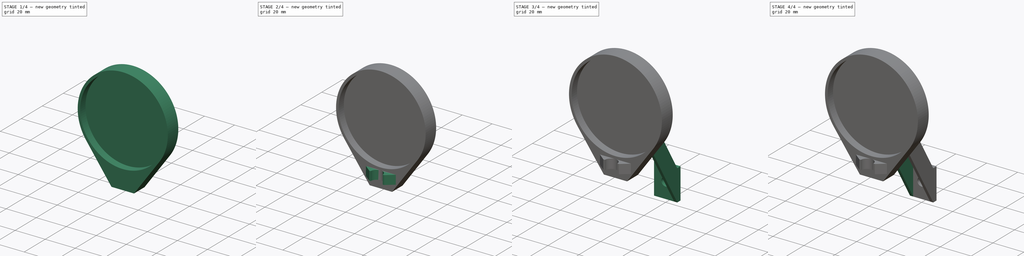
[diagram: build sequence overview — one tinted view per stage of 4, left to right]
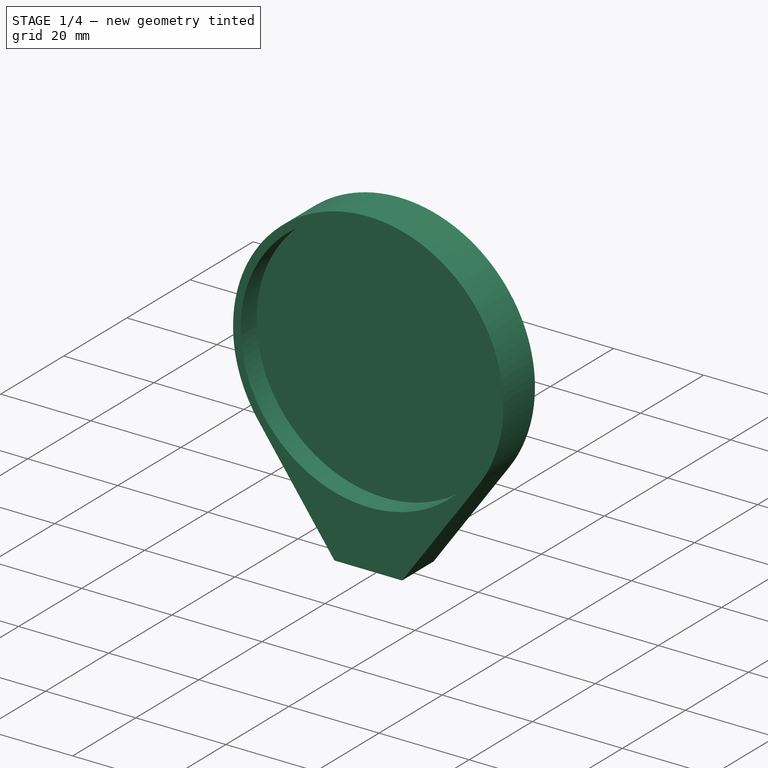
[diagram: stage 1 of 4 — iso view after this stage's code; geometry added in this stage tinted green]
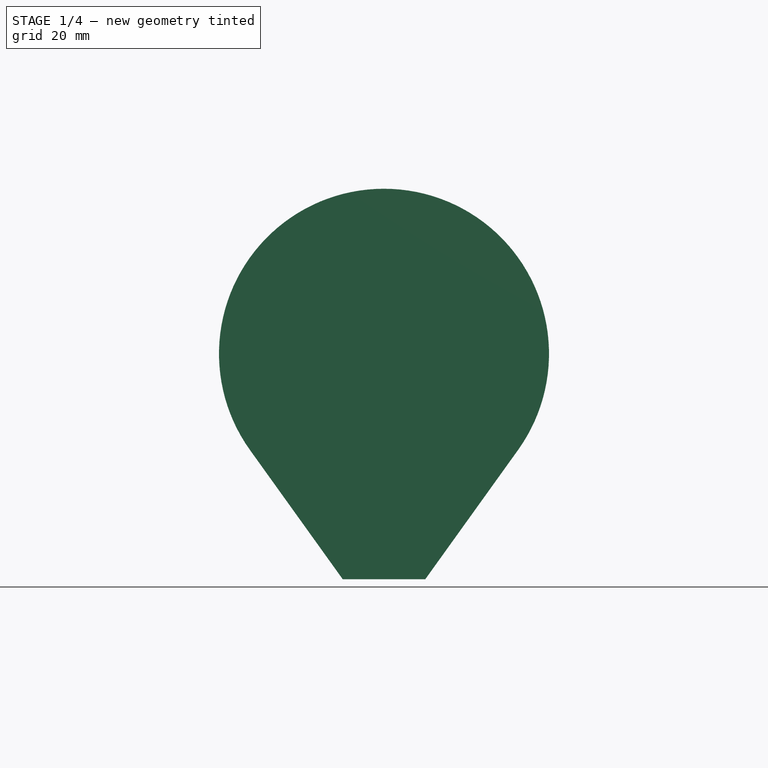
[diagram: stage 1 of 4 — front view after this stage's code; geometry added in this stage tinted green]
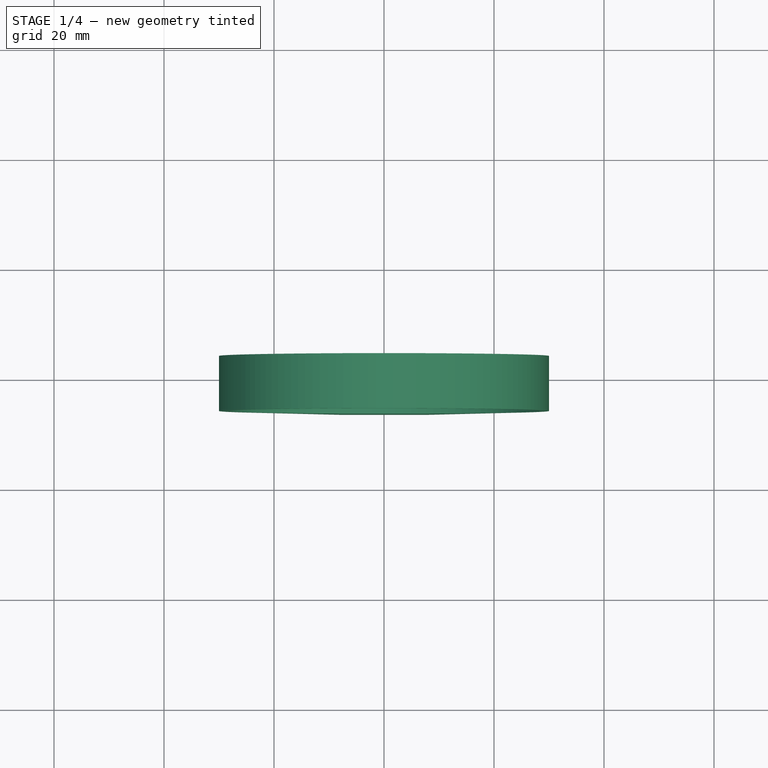
[diagram: stage 1 of 4 — top view after this stage's code; geometry added in this stage tinted green]
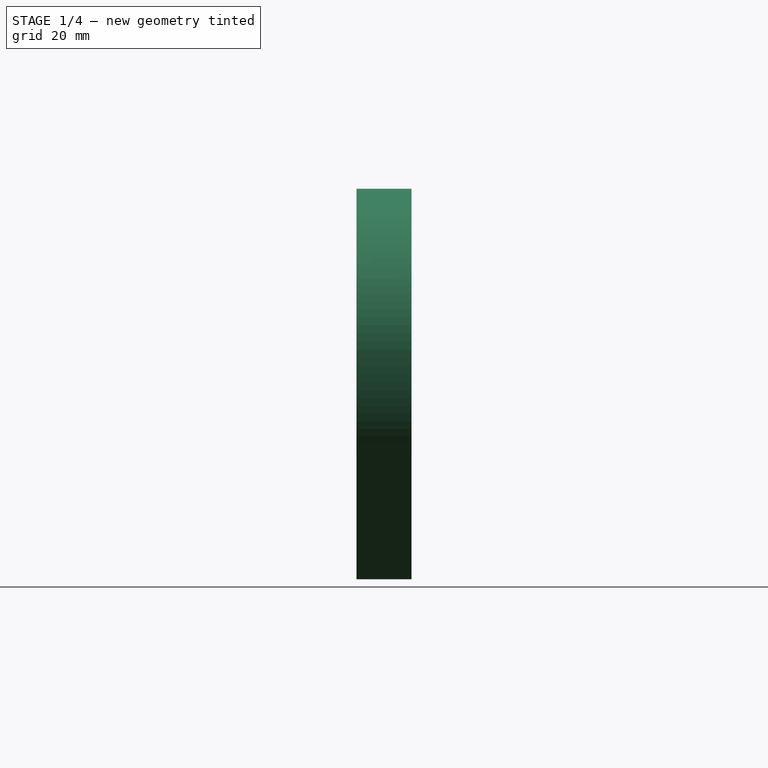
[diagram: stage 1 of 4 — right view after this stage's code; geometry added in this stage tinted green]
FCSTD DOCUMENT  (FreeCAD 0.21R33668 +26 (Git))
Label: digital_indicator_holder_sides
License: All rights reserved
LicenseURL: https://en.wikipedia.org/wiki/All_rights_reserved
objects: Sketcher::SketchObject×8, PartDesign::Pad×6, PartDesign::Plane×4, PartDesign::Mirrored×2, PartDesign::Pocket×2, PartDesign::Body×2
note: 32 computed .brp shape members not serialized (recipe doc carries the construction recipe); baked Part::Feature solids carry a one-line shape summary decoded from their .brp

FEATURE [PartDesign::Pad] Pad007
  Direction = (0,-1,-2e-16)
  Length = 10
  Length2 = 10
  Midplane = true
  Placement = pos=(0,-41.3,-9.2e-15) rot=(1,0,0;1.5708rad)
  Profile = -> Sketch003
  ReferenceAxis = -> Sketch003 [N_Axis]
  Type = 0
FEATURE [PartDesign::Pocket] Pocket
  BaseFeature = -> Pad007
  Direction = (0,1,2e-16)
  Length = 5
  Length2 = 5
  Placement = pos=(0,-41.3,-9.2e-15) rot=(1,0,0;1.5708rad)
  Profile = -> Sketch004
  ReferenceAxis = -> Sketch004 [N_Axis]
  Reversed = true
  Type = 0
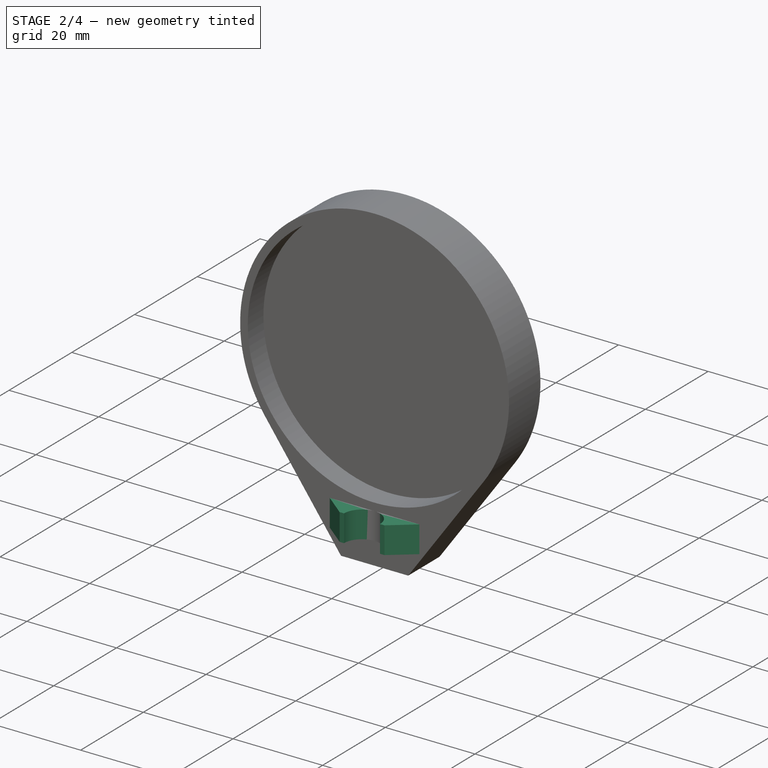
[diagram: stage 2 of 4 — iso view after this stage's code; geometry added in this stage tinted green]
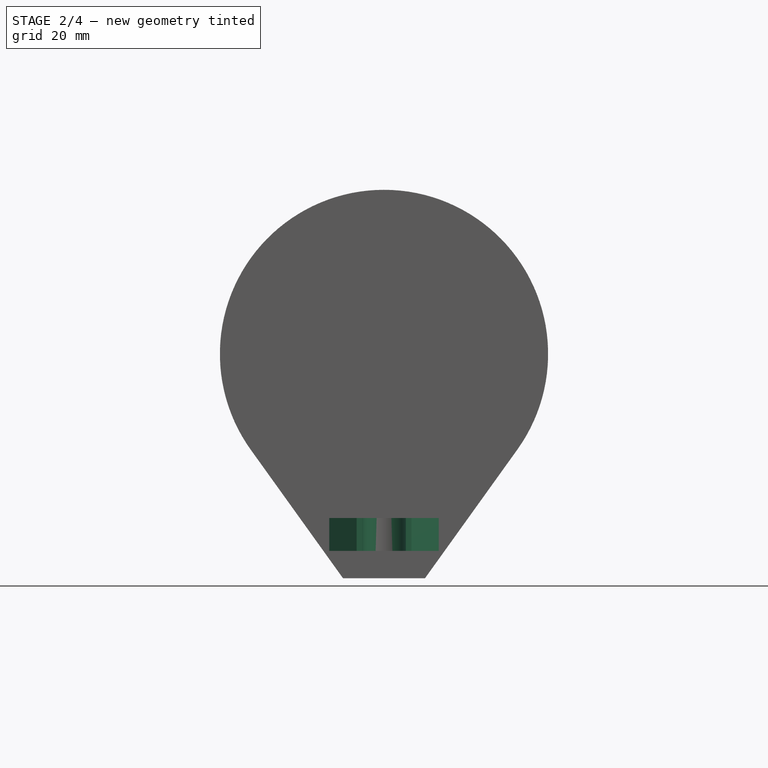
[diagram: stage 2 of 4 — front view after this stage's code; geometry added in this stage tinted green]
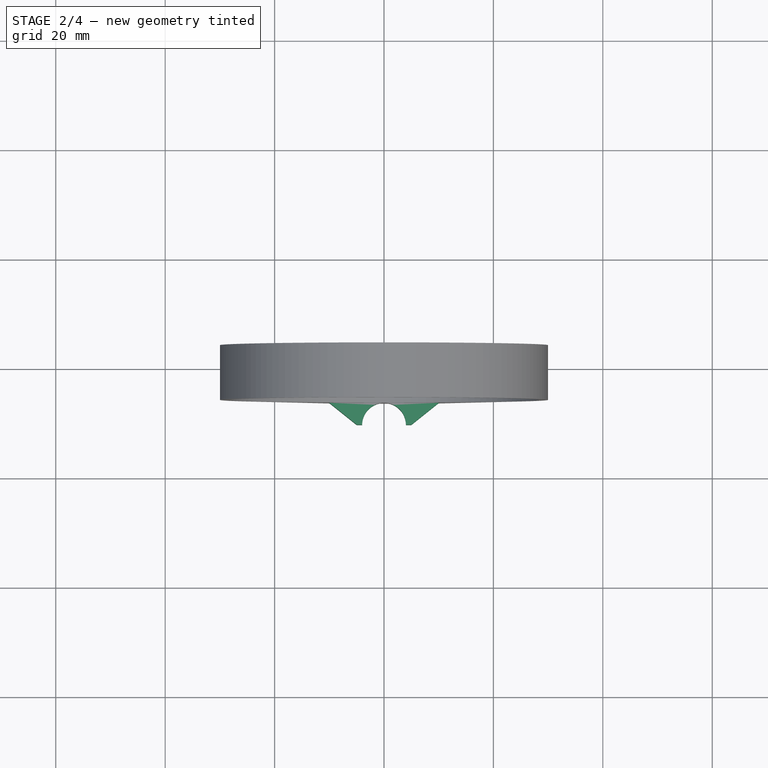
[diagram: stage 2 of 4 — top view after this stage's code; geometry added in this stage tinted green]
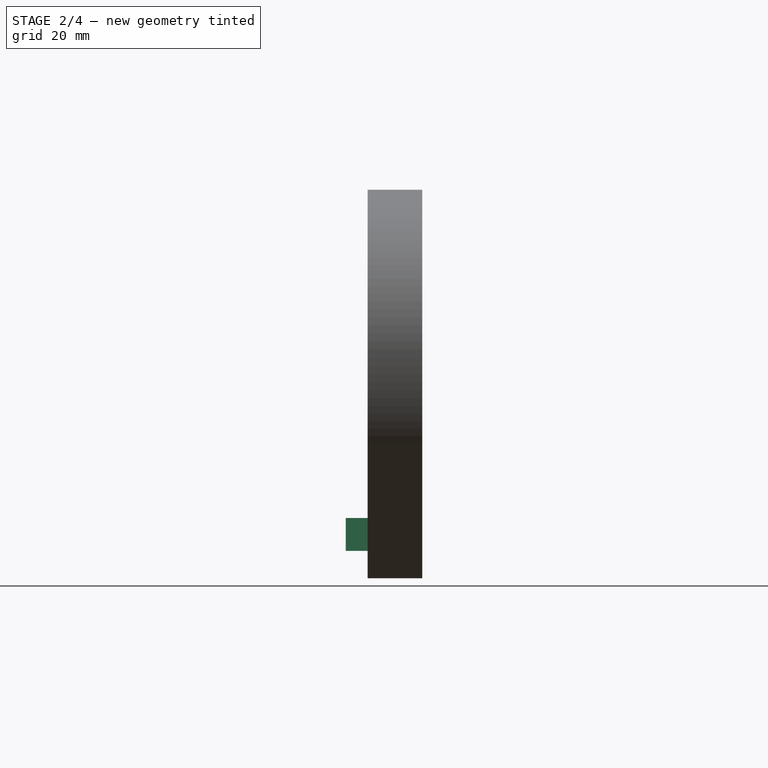
[diagram: stage 2 of 4 — right view after this stage's code; geometry added in this stage tinted green]
FEATURE [PartDesign::Pad] Pad008
  BaseFeature = -> Pocket
  Direction = (0,0,1)
  Length = 6
  Length2 = 10
  Midplane = true
  Placement = pos=(0,-41.3,-9.2e-15) rot=(1,0,0;1.5708rad)
  Profile = -> Sketch005
  ReferenceAxis = -> Sketch005 [N_Axis]
  Type = 0
FEATURE [PartDesign::Mirrored] Mirrored001
  BaseFeature = -> Pad008
  MirrorPlane = -> Sketch005 [V_Axis]
  Originals = -> [Pad008]
  Placement = pos=(0,-41.3,-9.2e-15) rot=(1,0,0;1.5708rad)
FEATURE [PartDesign::Body] Body001
  Group = -> [Sketch,Pad,DatumPlane,Sketch001,Pad005,Sketch002,Pad006,DatumPlane003,Mirrored,Pad009,Sketch006]
  Origin = -> Origin001
  Tip = -> Pad006
FEATURE [Sketcher::SketchObject] Sketch007
  FullyConstrained = true
  MapMode = 5
  Placement = pos=(0,-36.3,8.1e-15) rot=(1,0,0;1.5708rad)
  Support = -> [DatumPlane003]
  sketch-geometry (8):
    g0: LineSegment StartX=-7.5 StartY=70 StartZ=0 EndX=-7.5 EndY=50 EndZ=0
    g1: LineSegment StartX=-7.5 StartY=50 StartZ=0 EndX=-5.5 EndY=50 EndZ=0
    g2: LineSegment StartX=-5.5 StartY=50 StartZ=0 EndX=-5.5 EndY=68 EndZ=0
    g3: LineSegment StartX=-5.5 StartY=68 StartZ=0 EndX=5.5 EndY=68 EndZ=0
    g4: LineSegment StartX=5.5 StartY=68 StartZ=0 EndX=5.5 EndY=50 EndZ=0
    g5: LineSegment StartX=5.5 StartY=50 StartZ=0 EndX=7.5 EndY=50 EndZ=0
    g6: LineSegment StartX=7.5 StartY=50 StartZ=0 EndX=7.5 EndY=70 EndZ=0
    g7: LineSegment StartX=7.5 StartY=70 StartZ=0 EndX=-7.5 EndY=70 EndZ=0
  constraints (22):
    c: Vertical(g0)
    c: Coincident(g1,g0)
    c: Coincident(g2,g1)
    c: Vertical(g2)
    c: Coincident(g3,g2)
    c: Coincident(g4,g3)
    c: Vertical(g4)
    c: Coincident(g5,g4)
    c: Coincident(g6,g5)
    c: Vertical(g6)
    c: Coincident(g7,g6)
    c: Coincident(g7,g0)
    c: Horizontal(g5)
    c: Horizontal(g1)
    c: Horizontal(g4,g1)
    c: Symmetric(g3,g2,g-2)
    c: Symmetric(g6,g0,g-2)
    c: DistanceX(g7,g7) = 15
    c: DistanceX(g3,g3) = 11
    c: DistanceY(g6,g6) = 20
    c: DistanceY(g4,g4) = 18
    c: DistanceY(g-1,g3) = 68
FEATURE [PartDesign::Pocket] Pocket001
  BaseFeature = -> Mirrored001
  Direction = (0,1,-2e-16)
  Length = 1
  Length2 = 5
  Placement = pos=(0,-41.3,-9.2e-15) rot=(1,0,0;1.5708rad)
  Profile = -> Sketch007
  ReferenceAxis = -> Sketch007 [N_Axis]
  Reversed = true
  Type = 0
FEATURE [PartDesign::Body] Body
  Group = -> [DatumPlane001,Sketch003,Pad007,Sketch004,Pocket,DatumPlane002,Sketch005,Pad008,Mirrored001,Pocket001,Sketch007]
  Origin = -> Origin
  Tip = -> Pad008
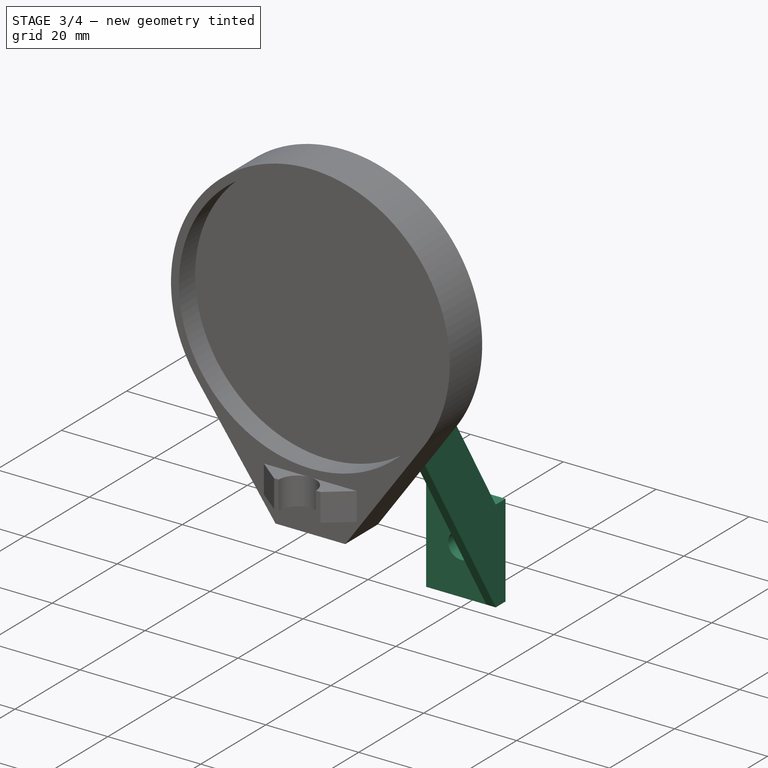
[diagram: stage 3 of 4 — iso view after this stage's code; geometry added in this stage tinted green]
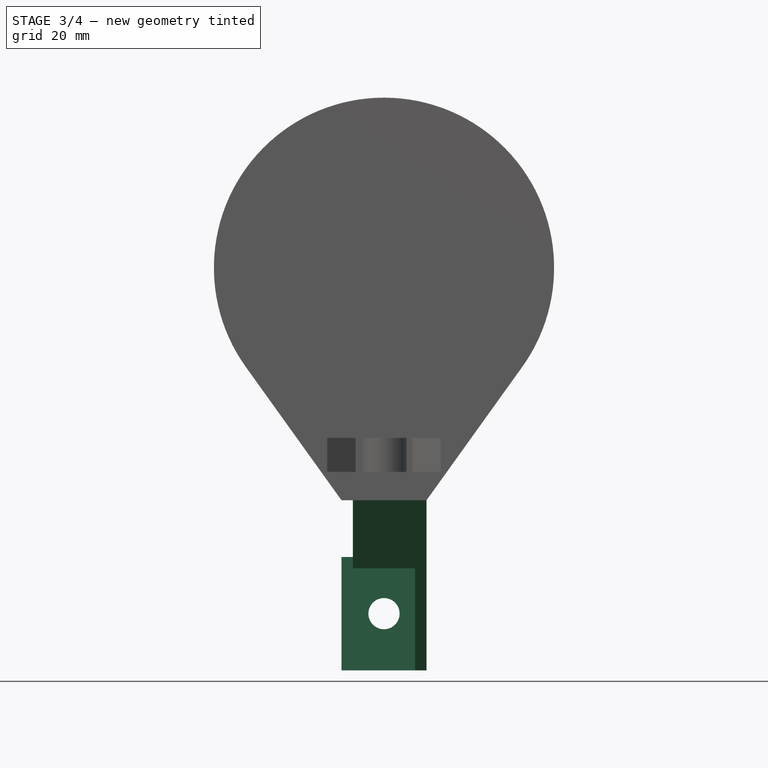
[diagram: stage 3 of 4 — front view after this stage's code; geometry added in this stage tinted green]
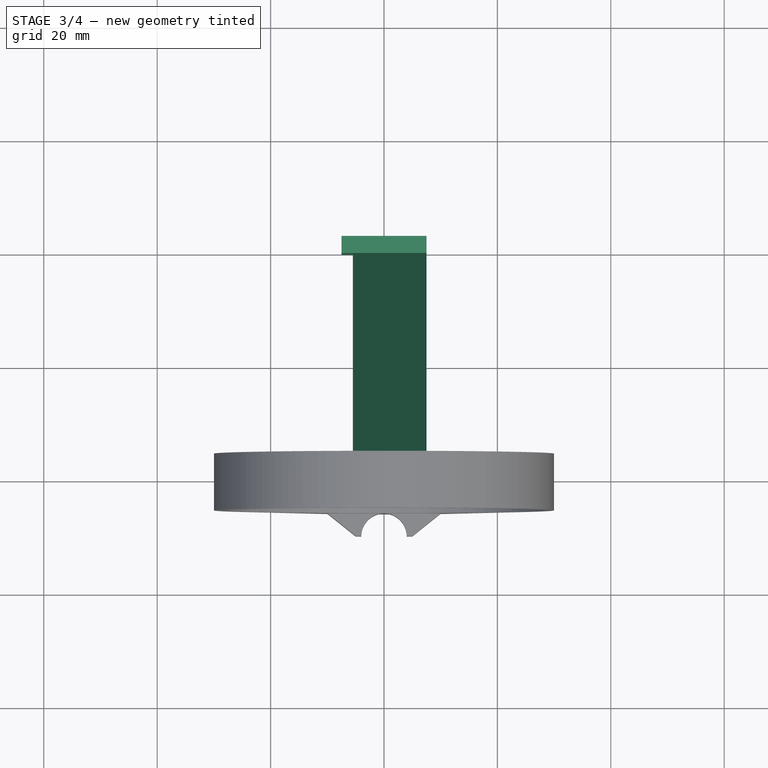
[diagram: stage 3 of 4 — top view after this stage's code; geometry added in this stage tinted green]
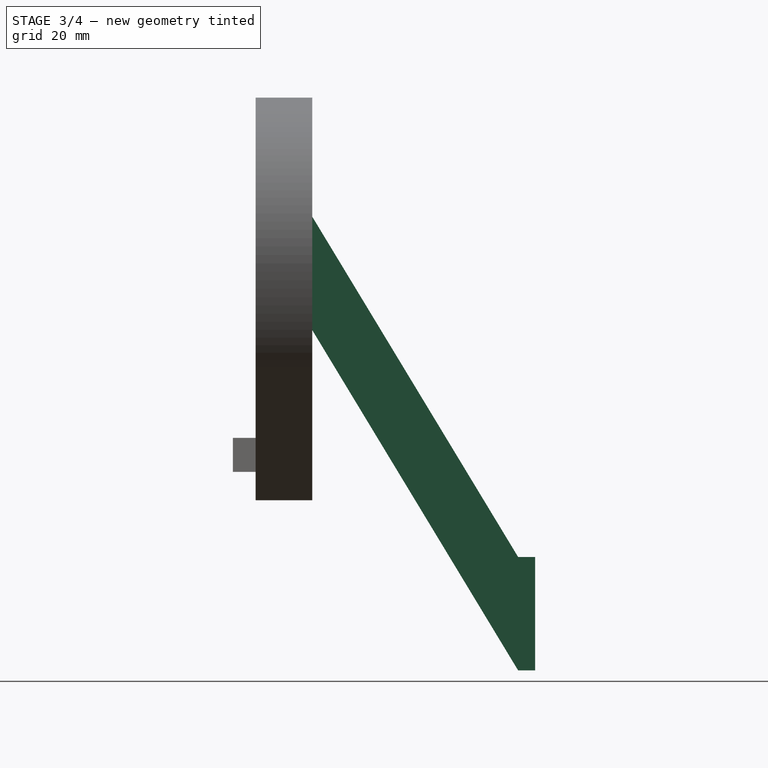
[diagram: stage 3 of 4 — right view after this stage's code; geometry added in this stage tinted green]
FEATURE [Sketcher::SketchObject] Sketch
  FullyConstrained = true
  MapMode = 5
  Placement = pos=(0,0,0) rot=(1,0,0;1.5708rad)
  Support = -> [XZ_Plane001]
  sketch-geometry (5):
    g0: LineSegment StartX=-7.5 StartY=-10 StartZ=0 EndX=-7.5 EndY=10 EndZ=0
    g1: LineSegment StartX=-7.5 StartY=10 StartZ=0 EndX=7.5 EndY=10 EndZ=0
    g2: LineSegment StartX=7.5 StartY=10 StartZ=0 EndX=7.5 EndY=-10 EndZ=0
    g3: LineSegment StartX=7.5 StartY=-10 StartZ=0 EndX=-7.5 EndY=-10 EndZ=0
    g4: Circle CenterX=0 CenterY=0 CenterZ=0 NormalX=0 NormalY=0 NormalZ=1 AngleXU=0 Radius=2.75
  constraints (12):
    c: Coincident(g0,g1)
    c: Coincident(g1,g2)
    c: Coincident(g2,g3)
    c: Coincident(g3,g0)
    c: Horizontal(g3)
    c: Vertical(g0)
    c: DistanceY(g2,g2) = 20
    c: DistanceX(g1,g1) = 15
    c: Coincident(g4,g-1)
    c: Diameter(g4) = 5.5
    c: Symmetric(g1,g2,g-1)
    c: Symmetric(g1,g0,g-2)
FEATURE [PartDesign::Pad] Pad
  Direction = (0,-1,2e-16)
  Length = 3
  Length2 = 10
  Placement = pos=(0,0,0) rot=(1,0,0;1.5708rad)
  Profile = -> Sketch
  ReferenceAxis = -> Sketch [N_Axis]
  Refine = true
  Reversed = true
  Type = 0
FEATURE [PartDesign::Plane] DatumPlane
  AttachmentOffset = pos=(0,0,7.5) rot=(0,0,1;0rad)
  Length = 76.5624
  MapMode = 5
  Placement = pos=(7.5,-1.7e-15,1.7e-15) rot=(0.57735,0.57735,0.57735;2.0944rad)
  ResizeMode = 0
  Support = -> [YZ_Plane001]
  Width = 110.262
FEATURE [Sketcher::SketchObject] Sketch001
  FullyConstrained = true
  MapMode = 5
  Placement = pos=(7.5,-1.7e-15,1.7e-15) rot=(0.57735,0.57735,0.57735;2.0944rad)
  Support = -> [DatumPlane]
  sketch-geometry (4):
    g0: LineSegment StartX=0 StartY=-10 StartZ=0 EndX=-36.3 EndY=50 EndZ=0
    g1: LineSegment StartX=0 StartY=10 StartZ=0 EndX=-36.3 EndY=70 EndZ=0
    g2: LineSegment StartX=0 StartY=10 StartZ=0 EndX=0 EndY=-10 EndZ=0
    g3: LineSegment StartX=-36.3 StartY=70 StartZ=0 EndX=-36.3 EndY=50 EndZ=0
  constraints (11):
    c: PointOnObject(g0,g-2)
    c: Symmetric(g1,g0,g-1)
    c: DistanceX(g1,g-1) = 36.3
    c: Coincident(g2,g1)
    c: Coincident(g2,g0)
    c: DistanceY(g2,g2) = 20
    c: Coincident(g3,g1)
    c: Coincident(g3,g0)
    c: Vertical(g3)
    c: DistanceY(g-1,g1) = 70
    c: DistanceY(g3,g3) = 20
FEATURE [Sketcher::SketchObject] Sketch002
  FullyConstrained = true
  MapMode = 5
  Placement = pos=(0,0,0) rot=(0.57735,0.57735,0.57735;2.0944rad)
  Support = -> [YZ_Plane001]
  sketch-geometry (4):
    g0: LineSegment StartX=0 StartY=10 StartZ=0 EndX=-36.3 EndY=70 EndZ=0
    g1: LineSegment StartX=-36.3 StartY=70 StartZ=0 EndX=-36.3 EndY=68 EndZ=0
    g2: LineSegment StartX=-36.3 StartY=68 StartZ=0 EndX=0 EndY=8 EndZ=0
    g3: LineSegment StartX=0 StartY=8 StartZ=0 EndX=0 EndY=10 EndZ=0
  constraints (13):
    c: PointOnObject(g0,g-2)
    c: Coincident(g1,g0)
    c: Coincident(g2,g1)
    c: PointOnObject(g2,g-2)
    c: Coincident(g3,g2)
    c: PointOnObject(g3,g0)
    c: Vertical(g3)
    c: Vertical(g1)
    c: DistanceX(g0,g-1) = 36.3
    c: DistanceY(g-1,g0) = 70
    c: DistanceY(g1,g1) = 2
    c: DistanceY(g3,g3) = 2
    c: DistanceY(g-1,g0) = 10
FEATURE [PartDesign::Plane] DatumPlane001
  AttachmentOffset = pos=(0,0,41.3) rot=(0,0,1;0rad)
  Length = 76.4621
  MapMode = 5
  Placement = pos=(0,-41.3,-9.2e-15) rot=(1,0,0;1.5708rad)
  ResizeMode = 0
  Support = -> [XZ_Plane]
  Width = 132.535
FEATURE [Sketcher::SketchObject] Sketch003
  FullyConstrained = true
  MapMode = 5
  Placement = pos=(0,-41.3,-9.2e-15) rot=(1,0,0;1.5708rad)
  Support = -> [DatumPlane001]
  sketch-geometry (4):
    g0: ArcOfCircle CenterX=0 CenterY=61 CenterZ=0 NormalX=0 NormalY=0 NormalZ=1 AngleXU=0 Radius=30 StartAngle=5.66065 EndAngle=10.0473
    g1: LineSegment StartX=-24.3721 StartY=43.5071 StartZ=0 EndX=-7.5 EndY=20 EndZ=0
    g2: LineSegment StartX=-7.5 StartY=20 StartZ=0 EndX=7.5 EndY=20 EndZ=0
    g3: LineSegment StartX=7.5 StartY=20 StartZ=0 EndX=24.3721 EndY=43.5071 EndZ=0
  constraints (11):
    c: PointOnObject(g0,g-2)
    c: Diameter(g0) = 60
    c: DistanceY(g-1,g0) = 61
    c: Coincident(g2,g1)
    c: Coincident(g3,g2)
    c: Horizontal(g3,g1)
    c: Symmetric(g2,g1,g-2)
    c: DistanceY(g-1,g2) = 20
    c: DistanceX(g2,g2) = 15
    c: Coincident(g0,g1)
    c: Tangent(g0,g3) = -1.5708
FEATURE [Sketcher::SketchObject] Sketch004
  FullyConstrained = true
  MapMode = 5
  Placement = pos=(0,-41.3,-9.2e-15) rot=(1,0,0;1.5708rad)
  Support = -> [DatumPlane001]
  sketch-geometry (1):
    g0: Circle CenterX=0 CenterY=61 CenterZ=0 NormalX=0 NormalY=0 NormalZ=1 AngleXU=0 Radius=28.3
  constraints (3):
    c: PointOnObject(g0,g-2)
    c: Diameter(g0) = 56.6
    c: DistanceY(g-1,g0) = 61
FEATURE [PartDesign::Plane] DatumPlane002
  AttachmentOffset = pos=(0,0,28) rot=(0,0,1;0rad)
  Length = 73.2334
  MapMode = 5
  Placement = pos=(0,0,28) rot=(0,0,1;0rad)
  ResizeMode = 0
  Support = -> [XY_Plane]
  Width = 88.7221
FEATURE [Sketcher::SketchObject] Sketch005
  FullyConstrained = true
  MapMode = 5
  Placement = pos=(0,0,28) rot=(0,0,1;0rad)
  Support = -> [DatumPlane002]
  sketch-geometry (4):
    g0: ArcOfCircle CenterX=0 CenterY=-50.3 CenterZ=0 NormalX=0 NormalY=0 NormalZ=1 AngleXU=0 Radius=4 StartAngle=1.5708 EndAngle=3.14159
    g1: LineSegment StartX=-4 StartY=-50.3 StartZ=0 EndX=-5 EndY=-50.3 EndZ=0
    g2: LineSegment StartX=-5 StartY=-50.3 StartZ=0 EndX=-10 EndY=-46.3 EndZ=0
    g3: LineSegment StartX=-10 StartY=-46.3 StartZ=0 EndX=9.9654e-12 EndY=-46.3 EndZ=0
  constraints (12):
    c: PointOnObject(g0,g-2)
    c: Diameter(g0) = 8
    c: DistanceY(g0,g-1) = 50.3
    c: Coincident(g2,g1)
    c: Coincident(g3,g2)
    c: Horizontal(g3)
    c: Horizontal(g1)
    c: DistanceX(g1,g1) = 1
    c: DistanceX(g3,g3) = 10
    c: Horizontal(g1,g0)
    c: Coincident(g0,g1)
    c: Tangent(g0,g3) = 1.5708
FEATURE [PartDesign::Pad] Pad005
  BaseFeature = -> Pad
  Direction = (1,-1e-16,1e-16)
  Length = 2
  Length2 = 10
  Placement = pos=(0,0,0) rot=(1,0,0;1.5708rad)
  Profile = -> Sketch001
  ReferenceAxis = -> Sketch001 [N_Axis]
  Refine = true
  Reversed = true
  Type = 0
FEATURE [PartDesign::Pad] Pad006
  BaseFeature = -> Pad005
  Direction = (1,-2e-16,3e-16)
  Length = 11
  Length2 = 10
  Midplane = true
  Placement = pos=(0,0,0) rot=(1,0,0;1.5708rad)
  Profile = -> Sketch002
  ReferenceAxis = -> Sketch002 [N_Axis]
  Refine = true
  Type = 0
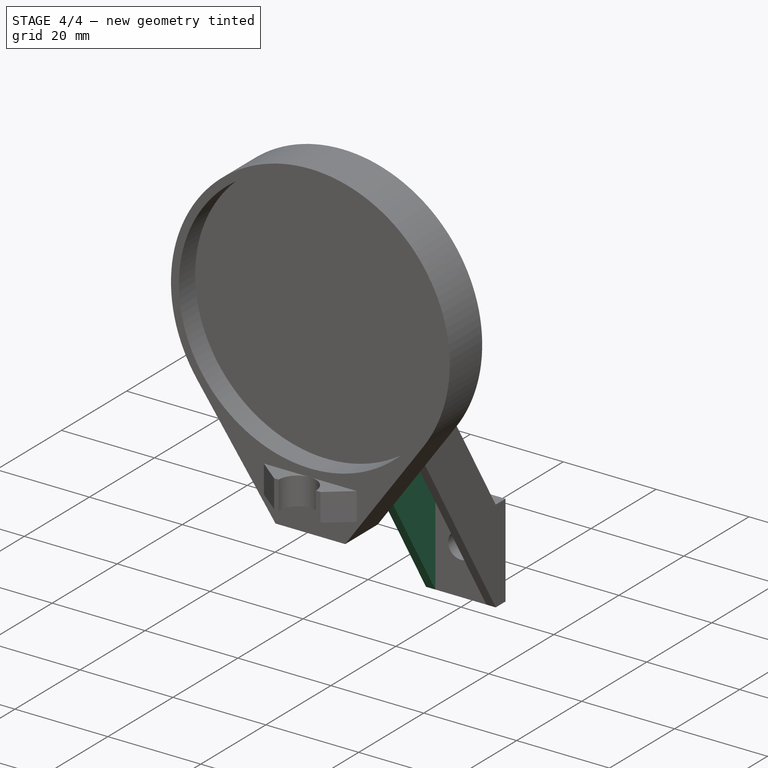
[diagram: stage 4 of 4 — iso view after this stage's code; geometry added in this stage tinted green]
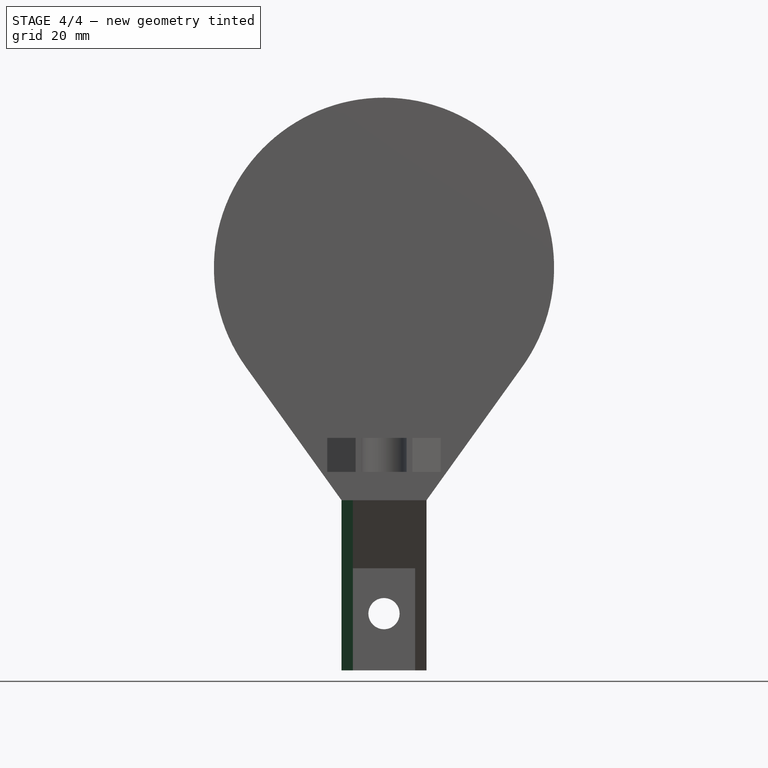
[diagram: stage 4 of 4 — front view after this stage's code; geometry added in this stage tinted green]
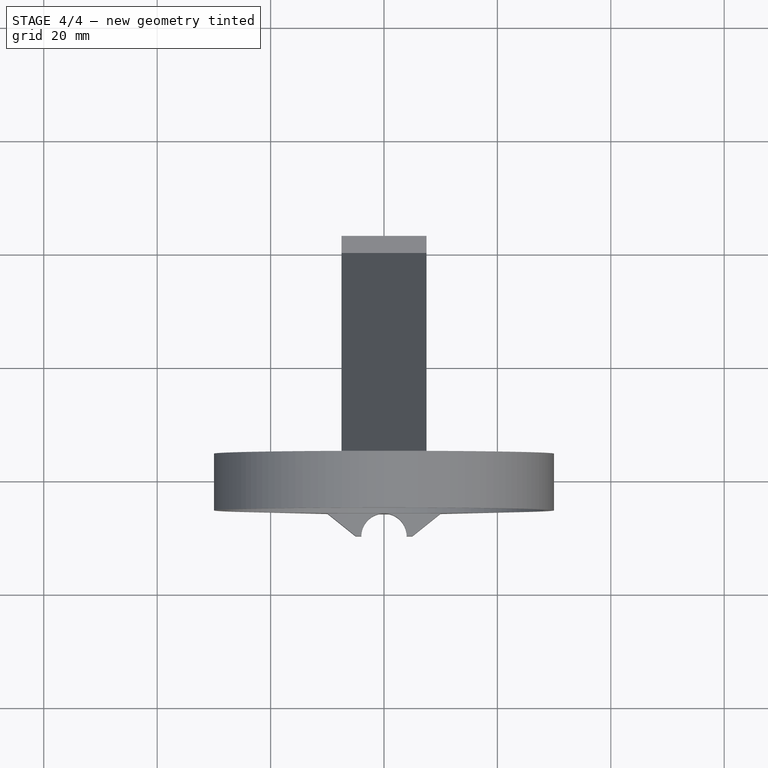
[diagram: stage 4 of 4 — top view after this stage's code; geometry added in this stage tinted green]
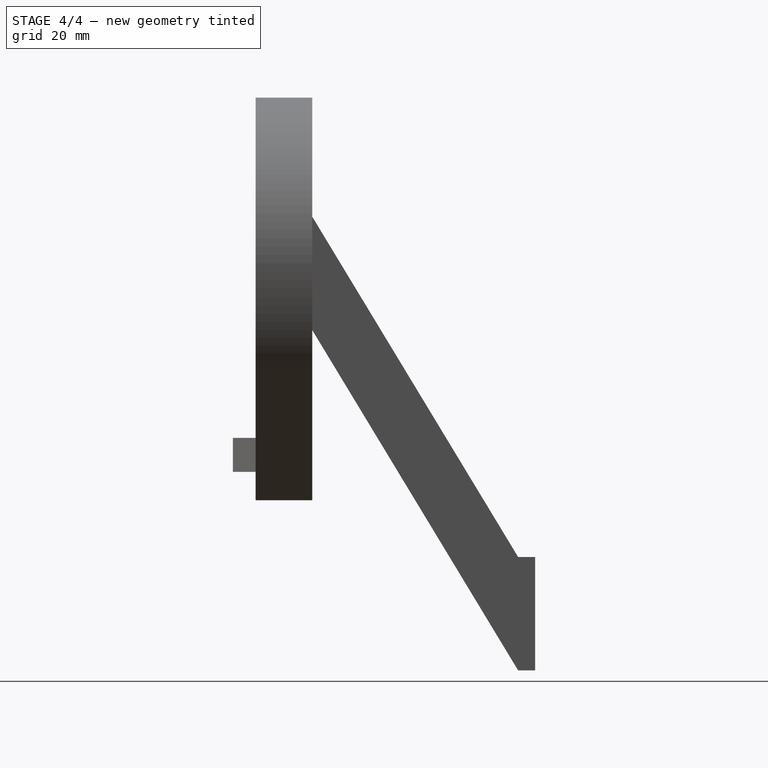
[diagram: stage 4 of 4 — right view after this stage's code; geometry added in this stage tinted green]
FEATURE [PartDesign::Mirrored] Mirrored
  BaseFeature = -> Pad006
  MirrorPlane = -> YZ_Plane001
  Originals = -> [Pad005]
  Placement = pos=(0,0,0) rot=(1,0,0;1.5708rad)
  Refine = true
FEATURE [PartDesign::Plane] DatumPlane003
  AttachmentOffset = pos=(0,0,36.3) rot=(0,0,1;0rad)
  Length = 63.784
  MapMode = 5
  Placement = pos=(0,-36.3,8.1e-15) rot=(1,0,0;1.5708rad)
  ResizeMode = 0
  Support = -> [XZ_Plane001]
  Width = 108.784
FEATURE [Sketcher::SketchObject] Sketch006
  FullyConstrained = true
  MapMode = 5
  Placement = pos=(0,-36.3,8.1e-15) rot=(1,0,0;1.5708rad)
  Support = -> [DatumPlane003]
  sketch-geometry (8):
    g0: LineSegment StartX=-7.5 StartY=70 StartZ=0 EndX=-7.5 EndY=50 EndZ=0
    g1: LineSegment StartX=-7.5 StartY=50 StartZ=0 EndX=-5.5 EndY=50 EndZ=0
    g2: LineSegment StartX=-5.5 StartY=50 StartZ=0 EndX=-5.5 EndY=68 EndZ=0
    g3: LineSegment StartX=-5.5 StartY=68 StartZ=0 EndX=5.5 EndY=68 EndZ=0
    g4: LineSegment StartX=5.5 StartY=68 StartZ=0 EndX=5.5 EndY=50 EndZ=0
    g5: LineSegment StartX=5.5 StartY=50 StartZ=0 EndX=7.5 EndY=50 EndZ=0
    g6: LineSegment StartX=7.5 StartY=50 StartZ=0 EndX=7.5 EndY=70 EndZ=0
    g7: LineSegment StartX=7.5 StartY=70 StartZ=0 EndX=-7.5 EndY=70 EndZ=0
  constraints (22):
    c: Vertical(g0)
    c: Coincident(g1,g0)
    c: Coincident(g2,g1)
    c: Vertical(g2)
    c: Coincident(g3,g2)
    c: Coincident(g4,g3)
    c: Vertical(g4)
    c: Coincident(g5,g4)
    c: Coincident(g6,g5)
    c: Vertical(g6)
    c: Coincident(g7,g6)
    c: Coincident(g7,g0)
    c: Horizontal(g5)
    c: Horizontal(g1)
    c: Horizontal(g4,g1)
    c: Symmetric(g3,g2,g-2)
    c: Symmetric(g6,g0,g-2)
    c: DistanceX(g7,g7) = 15
    c: DistanceX(g3,g3) = 11
    c: DistanceY(g6,g6) = 20
    c: DistanceY(g4,g4) = 18
    c: DistanceY(g-1,g3) = 68
FEATURE [PartDesign::Pad] Pad009
  BaseFeature = -> Mirrored
  Direction = (0,-1,2e-16)
  Length = 1
  Length2 = 10
  Placement = pos=(0,0,0) rot=(1,0,0;1.5708rad)
  Profile = -> Sketch006
  ReferenceAxis = -> Sketch006 [N_Axis]
  Type = 0
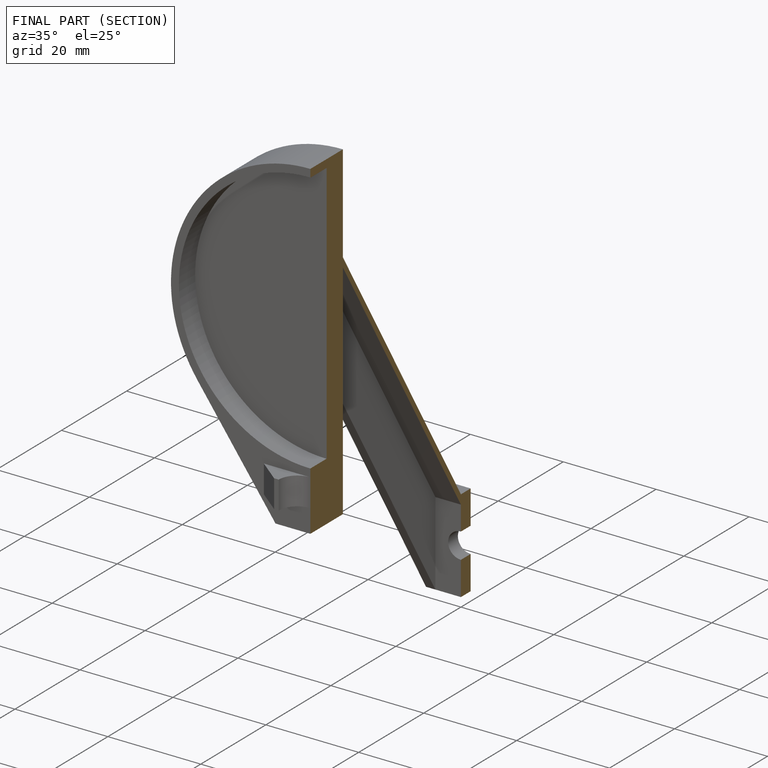
[diagram: finished part — half-section view (interior)]
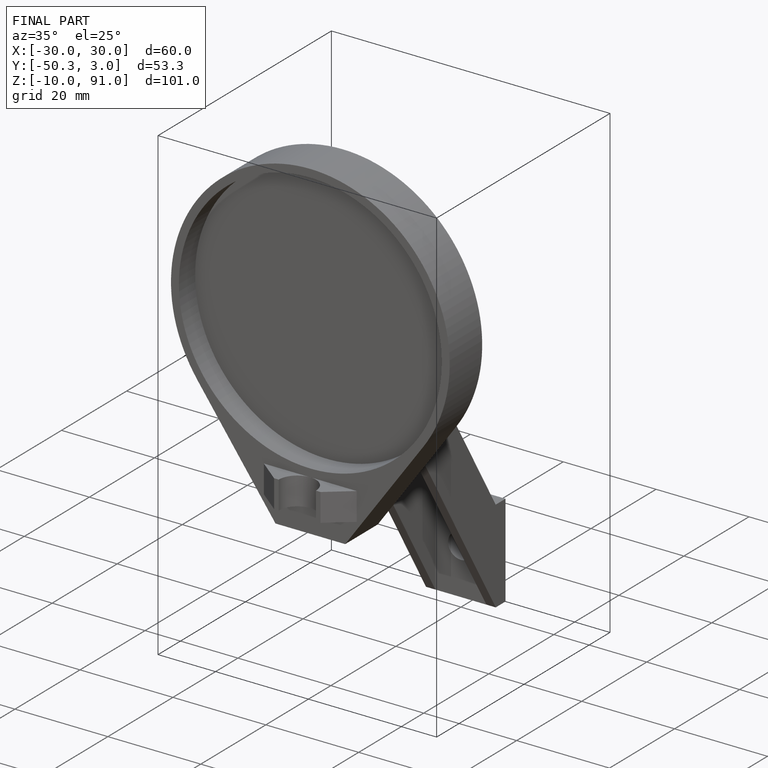
[diagram: finished part — iso view with bounding-box wireframe]
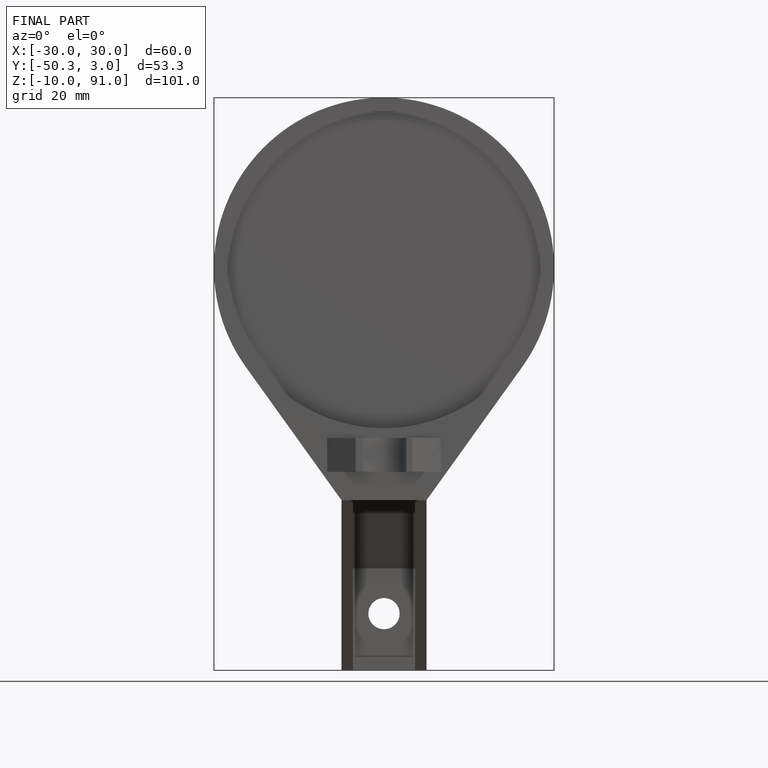
[diagram: finished part — front view with bounding-box wireframe]
